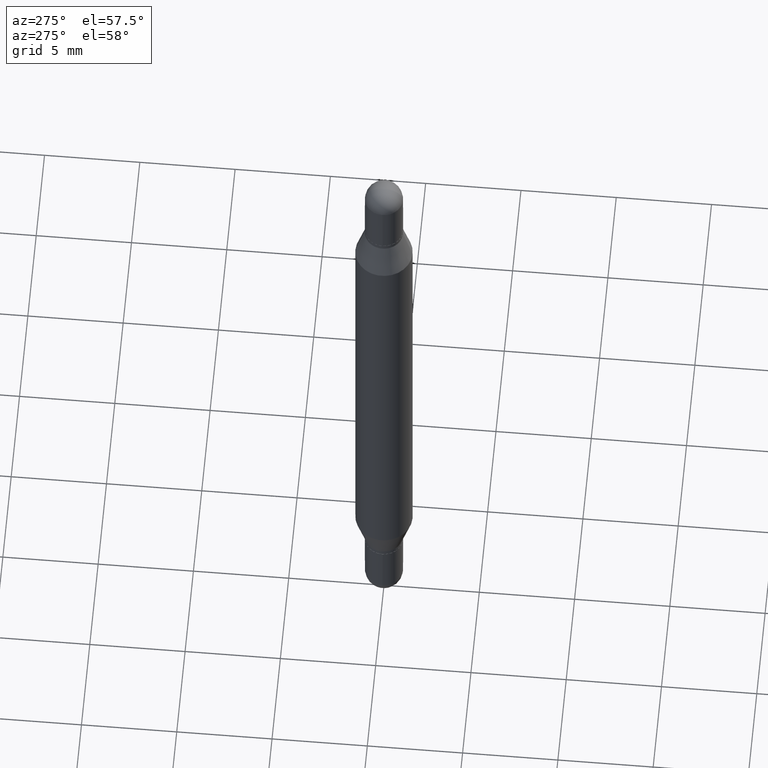
[diagram: clean part render]
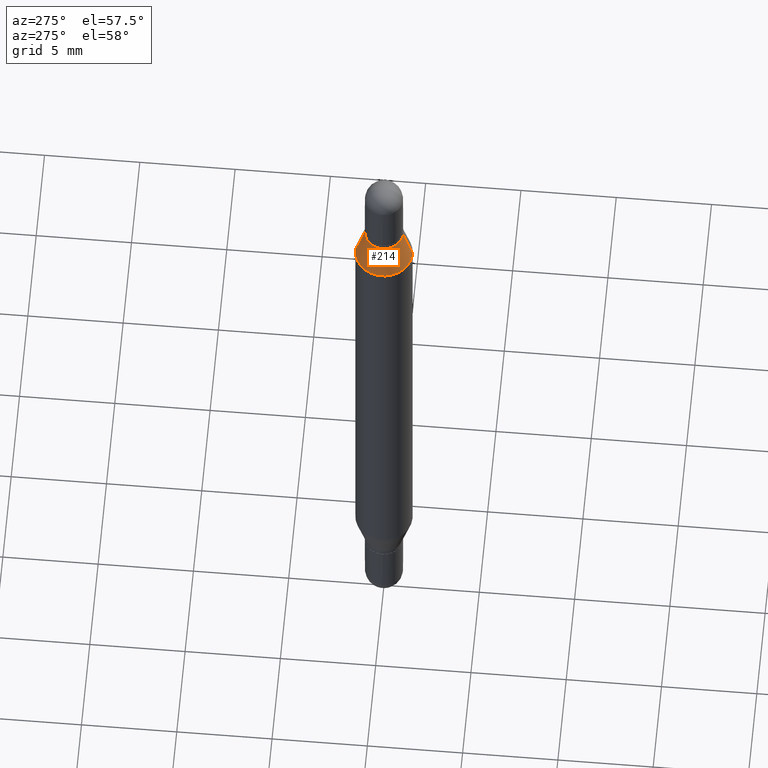
[diagram: same view with one face highlighted and labeled with its STEP entity id]
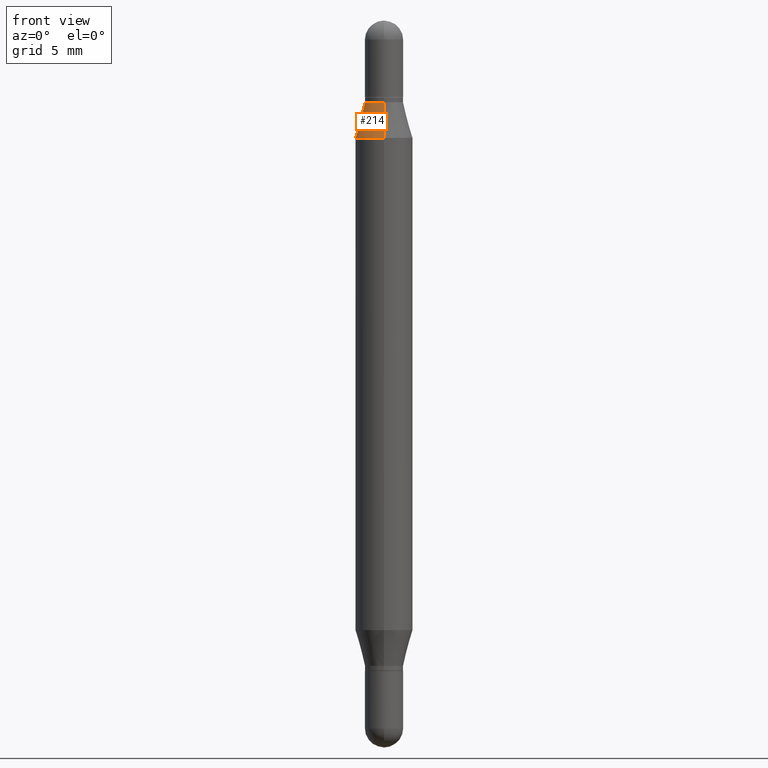
[diagram: same view with one face highlighted and labeled with its STEP entity id]
A machine part, auxiliary view. The second image highlights one B-rep face of the part: STEP entity #214.
A second angle (front view) of the same face is appended — the face is thin or edge-on in the first view.
In plain terms, the highlighted conical surface has half-angle 15 deg.
Its self-contained STEP definition (entity closure, byte-faithful):
#136 = AXIS2_PLACEMENT_3D ( 'NONE', #1054, #267, #618 ) ;
#150 = AXIS2_PLACEMENT_3D ( 'NONE', #402, #1098, #430 ) ;
#163 = ORIENTED_EDGE ( 'NONE', *, *, #418, .T. ) ;
#186 = ORIENTED_EDGE ( 'NONE', *, *, #651, .F. ) ;
#213 = ORIENTED_EDGE ( 'NONE', *, *, #264, .T. ) ;
#214 = ADVANCED_FACE ( 'NONE', ( #601 ), #924, .T. ) ;
#215 = CARTESIAN_POINT ( 'NONE',  ( 3.248103242407730179E-29, -5.930568230875244695E-16, -0.1679999999999999549 ) ) ;
#257 = EDGE_LOOP ( 'NONE', ( #903, #213, #163, #186 ) ) ;
#264 = EDGE_CURVE ( 'NONE', #1086, #523, #295, .T. ) ;
#267 = DIRECTION ( 'NONE',  ( -2.445676712903946009E-29, -3.479912201232478588E-15, -1.000000000000000000 ) ) ;
#295 = LINE ( 'NONE', #641, #326 ) ;
#326 = VECTOR ( 'NONE', #558, 39.37007874015748854 ) ;
#395 = CARTESIAN_POINT ( 'NONE',  ( 2.699605962123417464E-16, 0.03934999999999932996, -0.1680000000000000937 ) ) ;
#402 = CARTESIAN_POINT ( 'NONE',  ( 3.068293664304252923E-29, -8.489048431628303814E-16, -0.2415214009091068426 ) ) ;
#408 = CARTESIAN_POINT ( 'NONE',  ( 4.051124067684395845E-16, 0.05904999999999915178, -0.2415214009091070368 ) ) ;
#418 = EDGE_CURVE ( 'NONE', #523, #488, #869, .T. ) ;
#430 = DIRECTION ( 'NONE',  ( -6.982962677686265922E-15, -1.000000000000000000, 3.469747663417777397E-15 ) ) ;
#488 = VERTEX_POINT ( 'NONE', #620 ) ;
#523 = VERTEX_POINT ( 'NONE', #408 ) ;
#558 = DIRECTION ( 'NONE',  ( 1.775627540710966878E-15, 0.2588190451025184080, -0.9659258262890689783 ) ) ;
#577 = CARTESIAN_POINT ( 'NONE',  ( -2.747795813669215382E-16, -0.03935000000000050263, -0.1679999999999998161 ) ) ;
#581 = CARTESIAN_POINT ( 'NONE',  ( -2.747795813669215382E-16, -0.03935000000000050263, -0.1679999999999998161 ) ) ;
#597 = EDGE_CURVE ( 'NONE', #1086, #631, #690, .T. ) ;
#601 = FACE_OUTER_BOUND ( 'NONE', #257, .T. ) ;
#618 = DIRECTION ( 'NONE',  ( -6.982962677686266711E-15, -1.000000000000000000, 3.471217272762731039E-15 ) ) ;
#620 = CARTESIAN_POINT ( 'NONE',  ( -4.123439461173433657E-16, -0.05905000000000084487, -0.2415214009091066205 ) ) ;
#631 = VERTEX_POINT ( 'NONE', #581 ) ;
#641 = CARTESIAN_POINT ( 'NONE',  ( 2.699605962123416478E-16, 0.03934999999999932996, -0.1680000000000000937 ) ) ;
#651 = EDGE_CURVE ( 'NONE', #631, #488, #1012, .T. ) ;
#655 = VECTOR ( 'NONE', #757, 39.37007874015748854 ) ;
#690 = CIRCLE ( 'NONE', #818, 0.03934999999999991283 ) ;
#757 = DIRECTION ( 'NONE',  ( -1.807323732225331717E-15, -0.2588190451025252359, -0.9659258262890670910 ) ) ;
#818 = AXIS2_PLACEMENT_3D ( 'NONE', #215, #1024, #905 ) ;
#869 = CIRCLE ( 'NONE', #150, 0.05904999999999999832 ) ;
#903 = ORIENTED_EDGE ( 'NONE', *, *, #597, .F. ) ;
#905 = DIRECTION ( 'NONE',  ( -6.982962677686266711E-15, -1.000000000000000000, 3.471217272762731039E-15 ) ) ;
#924 = CONICAL_SURFACE ( 'NONE', #136, 0.03934999999999991283, 0.2617993877991505181 ) ;
#1012 = LINE ( 'NONE', #577, #655 ) ;
#1024 = DIRECTION ( 'NONE',  ( 2.445676712903946009E-29, 3.479912201232478588E-15, 1.000000000000000000 ) ) ;
#1054 = CARTESIAN_POINT ( 'NONE',  ( 3.248103242407730179E-29, -5.930568230875244695E-16, -0.1679999999999999549 ) ) ;
#1086 = VERTEX_POINT ( 'NONE', #395 ) ;
#1098 = DIRECTION ( 'NONE',  ( 2.445676712903946009E-29, 3.479912201232478588E-15, 1.000000000000000000 ) ) ;